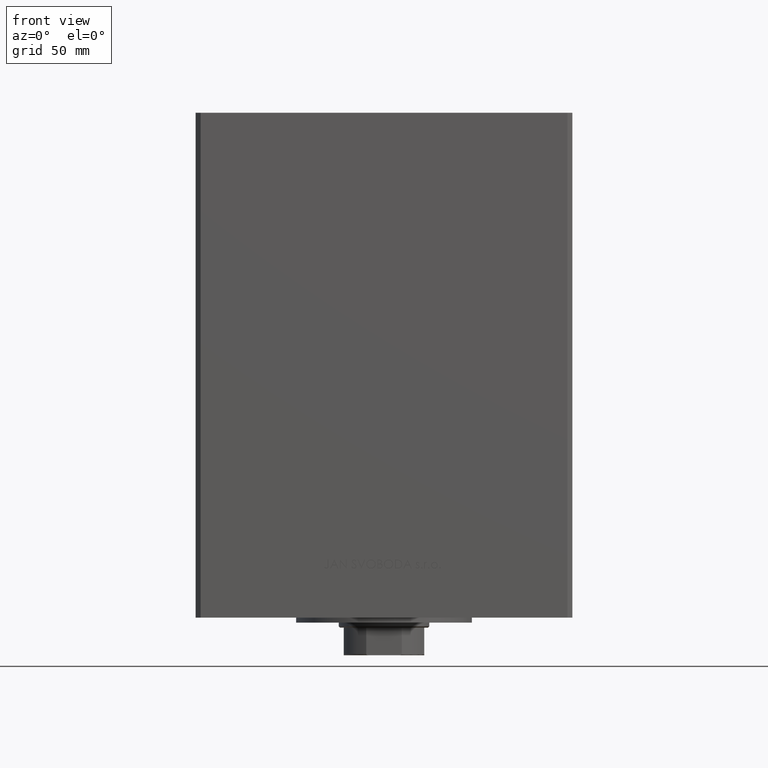
[diagram: clean part render]
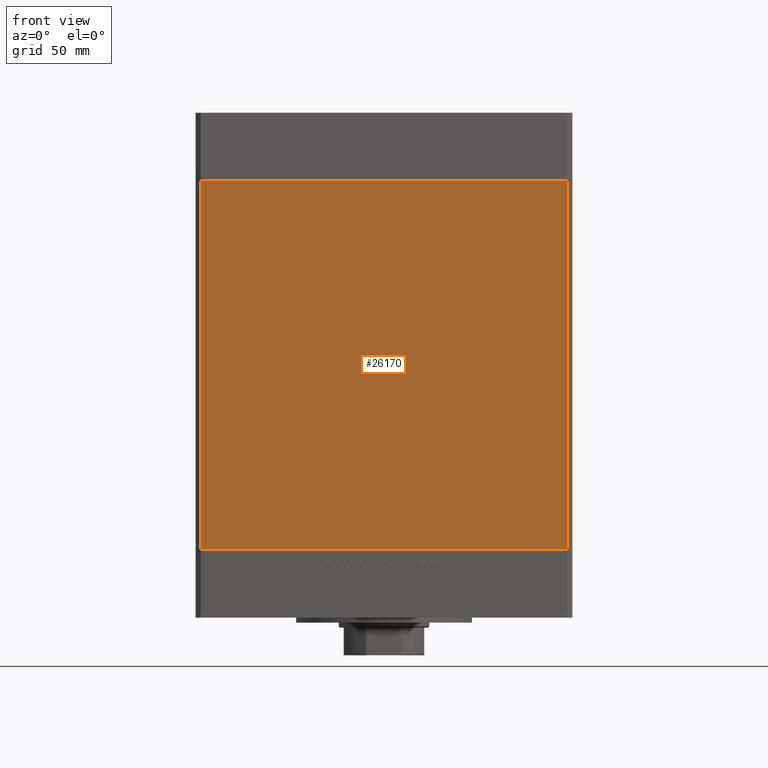
[diagram: same view with one face highlighted and labeled with its STEP entity id]
A machine part, front view. The second image highlights one B-rep face of the part: STEP entity #26170.
In plain terms, the highlighted planar face has unit normal (0, 1, 0).
Its self-contained STEP definition (entity closure, byte-faithful):
#866 = EDGE_LOOP ( 'NONE', ( #12297, #41700, #32519, #40373 ) ) ;
#1657 = FACE_OUTER_BOUND ( 'NONE', #866, .T. ) ;
#2712 = LINE ( 'NONE', #29910, #25611 ) ;
#3315 = EDGE_CURVE ( 'NONE', #4643, #16438, #2712, .T. ) ;
#4602 = CARTESIAN_POINT ( 'NONE',  ( -72.99999999999998579, -62.50000000000000000, 0.000000000000000000 ) ) ;
#4643 = VERTEX_POINT ( 'NONE', #21710 ) ;
#6958 = VECTOR ( 'NONE', #13538, 1000.000000000000000 ) ;
#7807 = VECTOR ( 'NONE', #47744, 1000.000000000000000 ) ;
#9955 = CARTESIAN_POINT ( 'NONE',  ( 72.99999999999998579, -62.50000000000000000, 0.000000000000000000 ) ) ;
#10868 = DIRECTION ( 'NONE',  ( -0.000000000000000000, -0.000000000000000000, -1.000000000000000000 ) ) ;
#11140 = EDGE_CURVE ( 'NONE', #4643, #33213, #17263, .T. ) ;
#12297 = ORIENTED_EDGE ( 'NONE', *, *, #46024, .T. ) ;
#13538 = DIRECTION ( 'NONE',  ( 1.000000000000000000, 0.000000000000000000, 0.000000000000000000 ) ) ;
#14332 = CARTESIAN_POINT ( 'NONE',  ( 72.99999999999998579, -62.50000000000000000, 147.0000000000000000 ) ) ;
#15230 = EDGE_CURVE ( 'NONE', #33213, #38427, #40828, .T. ) ;
#15740 = DIRECTION ( 'NONE',  ( 1.000000000000000000, 0.000000000000000000, 0.000000000000000000 ) ) ;
#16438 = VERTEX_POINT ( 'NONE', #35378 ) ;
#16510 = DIRECTION ( 'NONE',  ( 0.000000000000000000, 1.000000000000000000, 0.000000000000000000 ) ) ;
#16527 = CARTESIAN_POINT ( 'NONE',  ( -72.99999999999998579, -62.50000000000000000, 147.0000000000000000 ) ) ;
#17263 = LINE ( 'NONE', #16527, #6958 ) ;
#21710 = CARTESIAN_POINT ( 'NONE',  ( -72.99999999999998579, -62.50000000000000000, 147.0000000000000000 ) ) ;
#22242 = CARTESIAN_POINT ( 'NONE',  ( 72.99999999999998579, -62.50000000000000000, 147.0000000000000000 ) ) ;
#25611 = VECTOR ( 'NONE', #10868, 1000.000000000000000 ) ;
#26170 = ADVANCED_FACE ( 'NONE', ( #1657 ), #47670, .F. ) ;
#29910 = CARTESIAN_POINT ( 'NONE',  ( -72.99999999999998579, -62.50000000000000000, 147.0000000000000000 ) ) ;
#30243 = AXIS2_PLACEMENT_3D ( 'NONE', #43254, #16510, #35572 ) ;
#32519 = ORIENTED_EDGE ( 'NONE', *, *, #11140, .F. ) ;
#33213 = VERTEX_POINT ( 'NONE', #14332 ) ;
#34055 = LINE ( 'NONE', #4602, #42197 ) ;
#35378 = CARTESIAN_POINT ( 'NONE',  ( -72.99999999999998579, -62.50000000000000000, 0.000000000000000000 ) ) ;
#35572 = DIRECTION ( 'NONE',  ( 0.000000000000000000, -0.000000000000000000, 1.000000000000000000 ) ) ;
#38427 = VERTEX_POINT ( 'NONE', #9955 ) ;
#40373 = ORIENTED_EDGE ( 'NONE', *, *, #3315, .T. ) ;
#40828 = LINE ( 'NONE', #22242, #7807 ) ;
#41700 = ORIENTED_EDGE ( 'NONE', *, *, #15230, .F. ) ;
#42197 = VECTOR ( 'NONE', #15740, 1000.000000000000000 ) ;
#43254 = CARTESIAN_POINT ( 'NONE',  ( -72.99999999999998579, -62.50000000000000000, 147.0000000000000000 ) ) ;
#46024 = EDGE_CURVE ( 'NONE', #16438, #38427, #34055, .T. ) ;
#47670 = PLANE ( 'NONE',  #30243 ) ;
#47744 = DIRECTION ( 'NONE',  ( -0.000000000000000000, -0.000000000000000000, -1.000000000000000000 ) ) ;